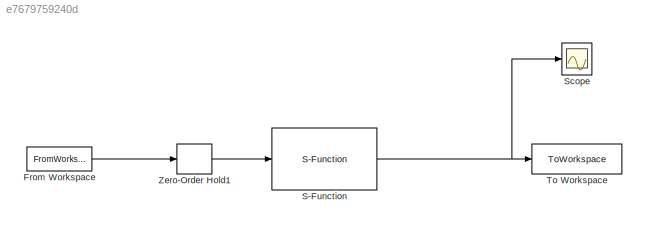
MODEL slx_e7679759240d
KIND model
CONFIG AbsTol = auto
CONFIG EnableMultiTasking = off
CONFIG FixedStep = auto
CONFIG MaxStep = auto
CONFIG MinStep = auto
CONFIG RelTol = 1e-3
CONFIG SampleTimeConstraint = Unconstrained
CONFIG SolverName = VariableStepAuto
CONFIG StartTime = 0.0
CONFIG StopTime = simulation_time
BLOCK [FromWorkspace] From Workspace
  SampleTime = sampling_time
  VariableName = input_signal
BLOCK [S-Function] S-Function
  EnableBusSupport = off
  FunctionName = sfun14
  SFcnIsStateOwnerBlock = off
  SFunctionDeploymentMode = off
BLOCK [Scope] Scope
  Floating = off
  NumInputPorts = 1
  ScopeSpecificationString = Simulink.scopes.TimeScopeBlockCfg('CurrentConfiguration', extmgr.ConfigurationSet(extmgr.Configuration('Core','General UI',true),extmgr.Configuration('Core','Source UI',true),extmgr.Configuration('Sources','WiredSimulink',true),extmgr.Configuration('Visuals','Time Domain',true,'SerializedDisplays',{struct('MinYLimReal','-2.86682','MaxYLimReal','0.33195','YLabelReal','','MinYLimMag','0.00000','MaxY...<+1362ch>
BLOCK [ToWorkspace] To Workspace
  FixptAsFi = on
  MaxDataPoints = inf
  SampleTime = sampling_time
  SaveFormat = Timeseries
  VariableName = output_data
BLOCK [ZeroOrderHold] Zero-Order Hold1
  SampleTime = sampling_time
LINE From Workspace:1 -> Zero-Order Hold1:1
NET S-Function:1 -> Scope:1, To Workspace:1
LINE Zero-Order Hold1:1 -> S-Function:1
note: NET lines group one-source signal fan-out (src -> all destinations, sorted); 1:1 wires keep LINE
